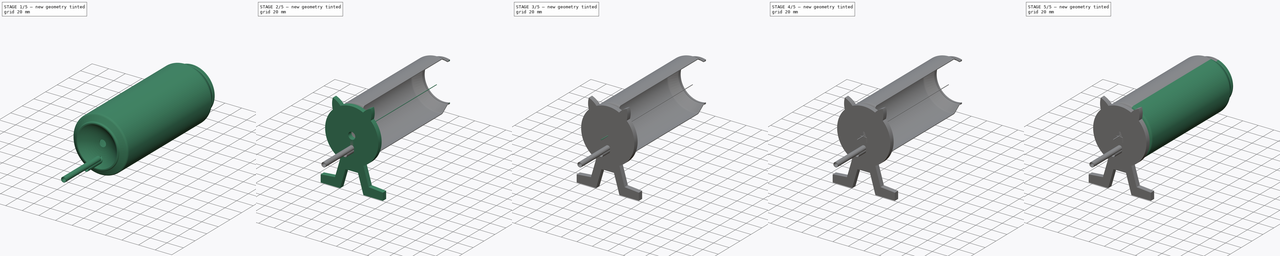
[diagram: build sequence overview — one tinted view per stage of 5, left to right]
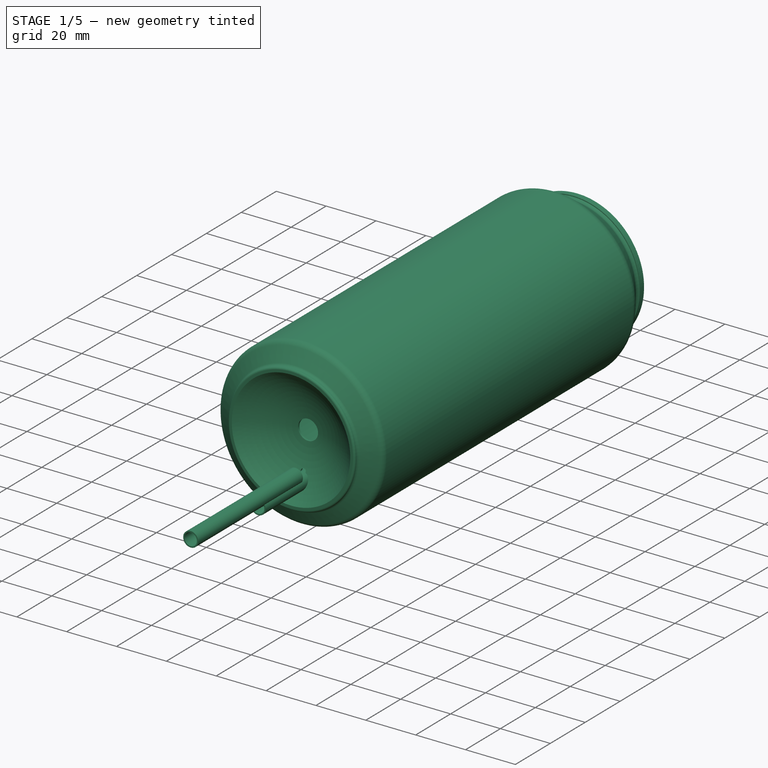
[diagram: stage 1 of 5 — iso view after this stage's code; geometry added in this stage tinted green]
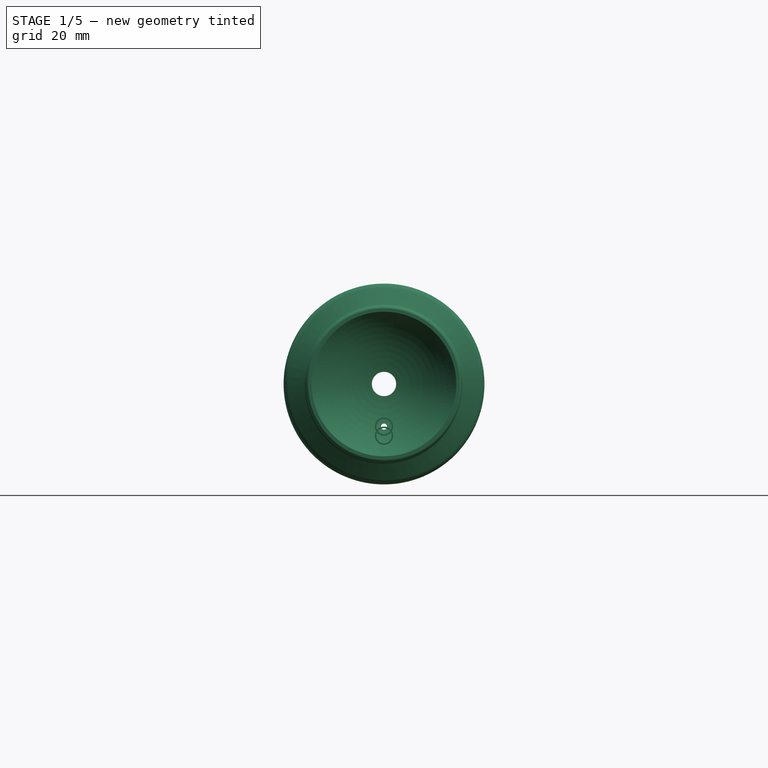
[diagram: stage 1 of 5 — front view after this stage's code; geometry added in this stage tinted green]
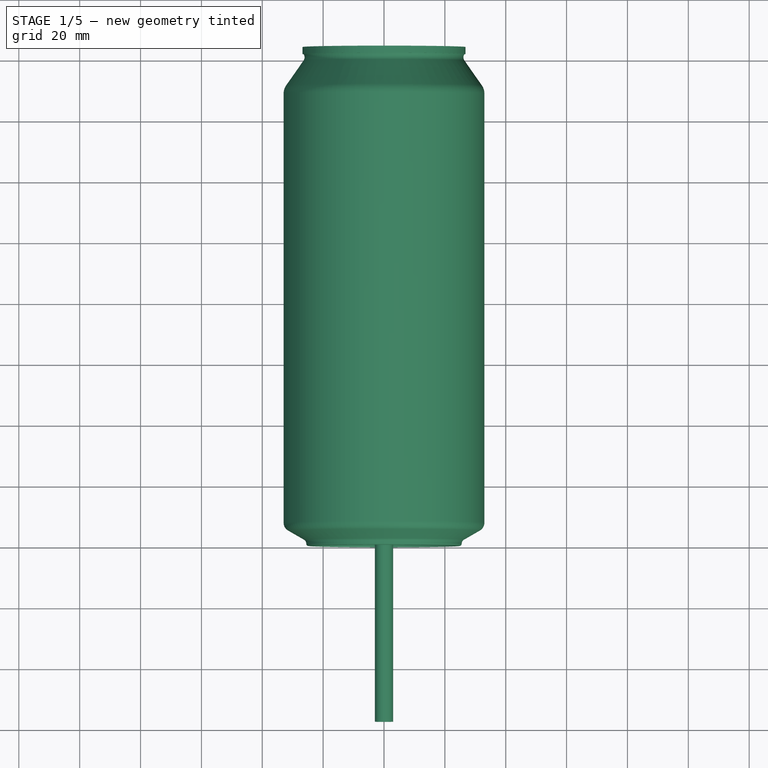
[diagram: stage 1 of 5 — top view after this stage's code; geometry added in this stage tinted green]
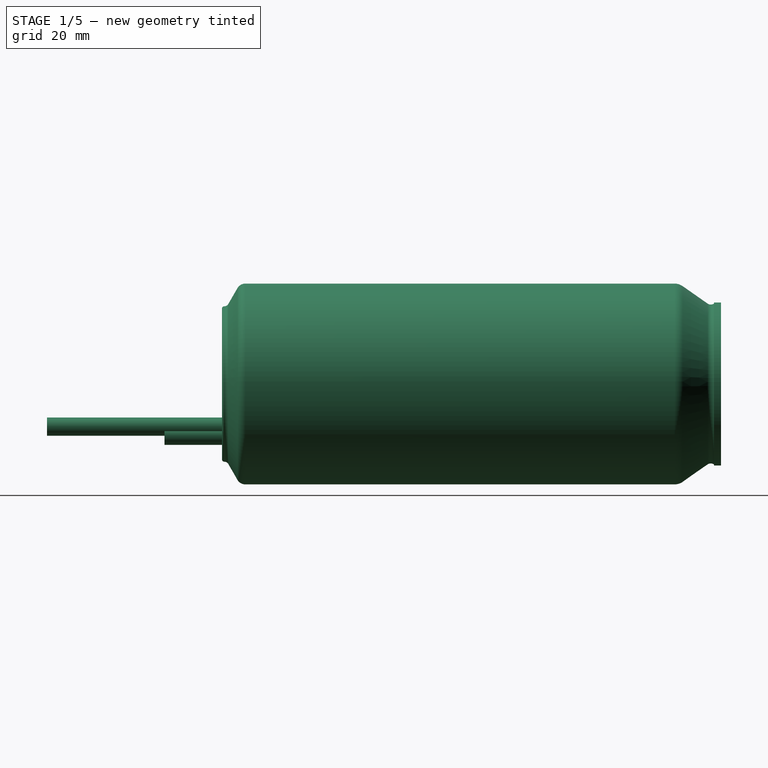
[diagram: stage 1 of 5 — right view after this stage's code; geometry added in this stage tinted green]
FCSTD DOCUMENT  (FreeCAD 1.0R39319 (Git))
Label: BeerCanDetector_v2
License: CERN Open Hardware Licence strongly-reciprocal
LicenseURL: https://cern-ohl.web.cern.ch/
objects: Sketcher::SketchObject×12, App::Part×10, PartDesign::Body×7, PartDesign::Pocket×4, Part::FeaturePython×4, PartDesign::Pad×4, PartDesign::Revolution×2, PartDesign::Groove×2, PartDesign::FeatureBase×1, Part::Feature×1, Part::Box×1
note: 75 computed .brp shape members not serialized (recipe doc carries the construction recipe); baked Part::Feature solids carry a one-line shape summary decoded from their .brp

FEATURE [App::Part] Part006  label="Wire"
  Group = -> [Box]
  Origin = -> Origin013
  Placement = pos=(0,-14.8,0) rot=(0,0,1;0rad)
FEATURE [Sketcher::SketchObject] Sketch009
  ArcFitTolerance = 1e-06
  AttachmentSupport = -> [YZ_Plane015]
  FullyConstrained = false
  MakeInternals = false
  MapMode = 5
  Placement = pos=(0,0,0) rot=(0.57735,0.57735,0.57735;2.0944rad)
  sketch-geometry (26):
    g0: LineSegment StartX=164 StartY=25.22 StartZ=0 EndX=164 EndY=26.78 EndZ=0
    g1: LineSegment StartX=161.7 StartY=26.78 StartZ=0 EndX=161.7 EndY=26.4458 EndZ=0
    g2: LineSegment StartX=159.55 StartY=26.4458 StartZ=0 EndX=151.421 EndY=32.138 EndZ=0
    g3: LineSegment StartX=148.687 StartY=33 StartZ=0 EndX=7.68678 EndY=33 EndZ=0
    g4: LineSegment StartX=5.0887 StartY=31.5 StartZ=0 EndX=2.07904 EndY=26.2871 EndZ=0
    g5: LineSegment StartX=-7e-16 StartY=24.7571 StartZ=0 EndX=-7e-16 EndY=23.7571 EndZ=0
    g6: ArcOfCircle CenterX=-23.22 CenterY=0 CenterZ=0 NormalX=0 NormalY=0 NormalZ=1 AngleXU=0 Radius=33.22 StartAngle=0 EndAngle=0.796831
    g7: ArcOfCircle CenterX=7.68678 CenterY=30 CenterZ=0 NormalX=0 NormalY=0 NormalZ=1 AngleXU=0 Radius=3 StartAngle=1.5708 EndAngle=2.61799
    g8: ArcOfCircle CenterX=0.78 CenterY=27.0371 CenterZ=0 NormalX=0 NormalY=0 NormalZ=1 AngleXU=0 Radius=1.5 StartAngle=4.71239 EndAngle=5.75959
    g9: ArcOfCircle CenterX=0.78 CenterY=24.7571 CenterZ=0 NormalX=0 NormalY=0 NormalZ=1 AngleXU=0 Radius=0.78 StartAngle=1.5708 EndAngle=3.14159
    g10: ArcOfCircle CenterX=148.687 CenterY=28.2338 CenterZ=0 NormalX=0 NormalY=0 NormalZ=1 AngleXU=0 Radius=4.76622 StartAngle=0.959931 EndAngle=1.5708
    g11: ArcOfCircle CenterX=160.625 CenterY=27.981 CenterZ=0 NormalX=0 NormalY=0 NormalZ=1 AngleXU=0 Radius=1.87421 StartAngle=4.10152 EndAngle=5.32325
    g12: ArcOfCircle CenterX=160.625 CenterY=27.981 CenterZ=0 NormalX=0 NormalY=0 NormalZ=1 AngleXU=0 Radius=2.65421 StartAngle=4.10152 EndAngle=5.12939
    g13: LineSegment StartX=159.103 StartY=25.8068 StartZ=0 EndX=150.973 EndY=31.4991 EndZ=0
    g14: ArcOfCircle CenterX=148.687 CenterY=28.2338 CenterZ=0 NormalX=0 NormalY=0 NormalZ=1 AngleXU=0 Radius=3.98622 StartAngle=0.959931 EndAngle=1.5708
    g15: LineSegment StartX=148.687 StartY=32.22 StartZ=0 EndX=7.68678 EndY=32.22 EndZ=0
    g16: ArcOfCircle CenterX=7.68678 CenterY=30 CenterZ=0 NormalX=0 NormalY=0 NormalZ=1 AngleXU=0 Radius=2.22 StartAngle=1.5708 EndAngle=2.61799
    g17: LineSegment StartX=5.7642 StartY=31.11 StartZ=0 EndX=2.75454 EndY=25.8971 EndZ=0
    g18: ArcOfCircle CenterX=0.78 CenterY=27.0371 CenterZ=0 NormalX=0 NormalY=0 NormalZ=1 AngleXU=0 Radius=2.28 StartAngle=4.71239 EndAngle=5.75959
    g19: LineSegment StartX=0.78 StartY=24.7571 StartZ=0 EndX=0.78 EndY=24.0832 EndZ=0
    g20: ArcOfCircle CenterX=-23.22 CenterY=0 CenterZ=0 NormalX=0 NormalY=0 NormalZ=1 AngleXU=0 Radius=34 StartAngle=0 EndAngle=0.787128
    g21: LineSegment StartX=10 StartY=0 StartZ=0 EndX=10.78 EndY=0 EndZ=0
    g22: LineSegment StartX=161.7 StartY=25.5542 StartZ=0 EndX=161.7 EndY=25.22 EndZ=0
    g23: LineSegment StartX=164 StartY=25.22 StartZ=0 EndX=161.7 EndY=25.22 EndZ=0
    g24: LineSegment StartX=161.7 StartY=26.78 StartZ=0 EndX=164 EndY=26.78 EndZ=0
    g25: GeomPoint [constr] X=164 Y=26 Z=0
  constraints (70):
    c: Vertical(g0)
    c: PointOnObject(g6,g-1)
    c: Coincident(g6,g5)
    c: PointOnObject(g6,g-1)
    c: DistanceX(g-1,g6) = 10
    c: Tangent(g3,g7) = -1.5708
    c: Tangent(g4,g8) = 1.5708
    c: Tangent(g5,g9) = -1.5708
    c: Tangent(g3,g10) = -1.5708
    c: Coincident(g11,g1)
    c: DistanceY(g5,g5) = 1
    c: Tangent(g12,g13) = 1.5708
    c: Tangent(g13,g14) = -1.5708
    c: Tangent(g14,g15) = -1.5708
    c: Tangent(g15,g16) = -1.5708
    c: Tangent(g16,g17) = -1.5708
    c: Tangent(g17,g18) = 1.5708
    c: Coincident(g18,g19)
    c: Coincident(g19,g20)
    c: Coincident(g12,g11)
    c: Parallel(g13,g2)
    c: Coincident(g14,g10)
    c: Parallel(g15,g3)
    c: Coincident(g16,g7)
    c: Parallel(g17,g4)
    c: Coincident(g18,g8)
    c: Parallel(g19,g5)
    c: Coincident(g20,g6)
    c: Coincident(g21,g6)
    c: Coincident(g21,g20)
    c: Horizontal(g21)
    c: Vertical(g22)
    c: Coincident(g23,g22)
    c: Horizontal(g23)
    c: Distance(g12,g2) = 0.78
    c: Distance(g4,g17) = 0.78
    c: Coincident(g2,g11)
    c: Coincident(g7,g4)
    c: Horizontal(g3)
    c: Diameter(g11) = 3.74841
    c: Diameter(g8) = 3
    c: Diameter(g9) = 1.56
    c: Tangent(g10,g2) = -1.5708
    c: Vertical(g1)
    c: DistanceX(g1,g0) = 2.3
    c: Coincident(g24,g1)
    c: Coincident(g24,g0)
    c: Horizontal(g24)
    c: DistanceX(g2,g1) = 2.15
    c: Vertical(g5)
    c: PointOnObject(g5,g-2)
    c: Coincident(g18,g9)
    c: DistanceY(g20,g3) = 33
    c: Diameter(g20) = 68
    c: DistanceX(g21,g21) = 0.78
    c: Angle(g17,g15) = 2.0944
    c: Tangent(g8,g9) = 1.5708
    c: Vertical(g8,g9)
    c: DistanceX(g3,g3) = 141
    c: Horizontal(g2,g1)
    c: Coincident(g12,g22)
    c: Equal(g22,g1)
    c: Vertical(g12,g1)
    c: Coincident(g0,g23)
    c: DistanceY(g0,g0) = 1.56
    c: Symmetric(g0,g0,g25)
    c: DistanceY(g-1,g25) = 26
    c: DistanceX(g-1,g25) = 164
    c: Diameter(g7) = 6
    c: Angle(g3,g2) = 2.53073
FEATURE [PartDesign::Revolution] Revolution001
  Angle = 360
  Angle2 = 60
  Axis = (0,1,0)
  Base = (0,0,0)
  Placement = pos=(0,0,0) rot=(1,1,1;2.0944rad)
  Profile = -> Sketch009
  ReferenceAxis = -> Sketch009 [H_Axis]
  Refine = true
  Suppressed = false
  Type = 0
FEATURE [Sketcher::SketchObject] Sketch010
  ArcFitTolerance = 1e-06
  AttachmentSupport = -> [Revolution001]
  FullyConstrained = true
  MakeInternals = false
  MapMode = 5
  Placement = pos=(0,-6.2e-15,0) rot=(0.57735,0.57735,-0.57735;2.0944rad)
  sketch-geometry (2):
    g0: Circle CenterX=0 CenterY=0 CenterZ=0 NormalX=0 NormalY=0 NormalZ=1 AngleXU=0 Radius=4
    g1: Circle CenterX=14 CenterY=0 CenterZ=0 NormalX=0 NormalY=0 NormalZ=1 AngleXU=0 Radius=1
  constraints (5):
    c: Diameter(g0) = 8
    c: Coincident(g0,g-1)
    c: Diameter(g1) = 2
    c: PointOnObject(g1,g-1)
    c: DistanceX(g0,g1) = 14
FEATURE [PartDesign::Pocket] Pocket002
  BaseFeature = -> Revolution001
  Direction = (0,1,0)
  Length = 11
  Length2 = 5
  Placement = pos=(0,0,0) rot=(1,1,1;2.0944rad)
  Profile = -> Sketch010
  ReferenceAxis = -> Sketch010 [N_Axis]
  Refine = true
  Suppressed = false
  Type = 0
FEATURE [PartDesign::Body] Body006
  AllowCompound = false
  Group = -> [Sketch009,Revolution001,Sketch010,Pocket002,Sketch011,Pocket003]
  Origin = -> Origin015
  Tip = -> Pocket003
FEATURE [App::Part] Part007  label="CutCan"
  Group = -> [Body006]
  Origin = -> Origin014
FEATURE [Part::FeaturePython] Tube  # WARN: FeaturePython — macro-defined, semantics opaque (R4)
  AttacherType = Attacher::AttachEngine3D
  Height = 60
  InnerRadius = 2.5
  OuterRadius = 3
  Placement = pos=(0,-18.9,-17) rot=(1,0,0;4.71239rad)
FEATURE [App::Part] Part004  label="FrontPC"
  Group = -> [Body004,PAR_00103470,Tube]
  Origin = -> Origin009
  Placement = pos=(0,167.925,0) rot=(1,0,0;0rad)
FEATURE [Part::FeaturePython] Tube001  # WARN: FeaturePython — macro-defined, semantics opaque (R4)
  AttacherType = Attacher::AttachEngine3D
  Height = 60
  InnerRadius = 2.5
  OuterRadius = 3
  Placement = pos=(0,-57.5,-14) rot=(1,0,0;4.71239rad)
FEATURE [App::Part] Part005  label="RearPC"
  Group = -> [Body005,Tube001]
  Origin = -> Origin011
  Placement = pos=(0,1.6,0) rot=(0,0,1;0rad)
FEATURE [App::Part] Part008  label="Detector"
  Group = -> [Part005,Part004,Part006,Part001,Part002,Part007,Part]
  Origin = -> Origin016
  Placement = pos=(0,-75.1,0) rot=(0,0,1;0rad)
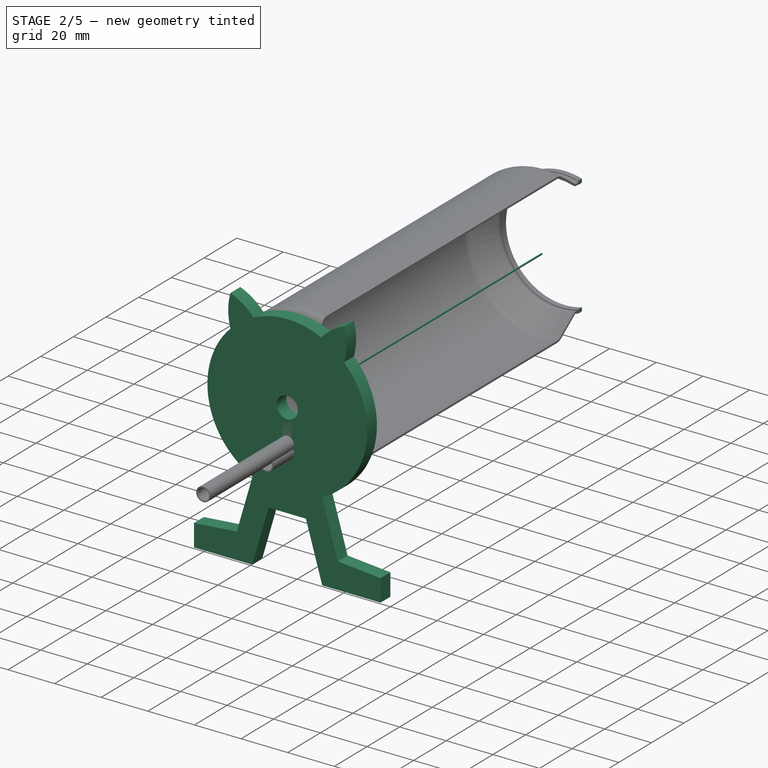
[diagram: stage 2 of 5 — iso view after this stage's code; geometry added in this stage tinted green]
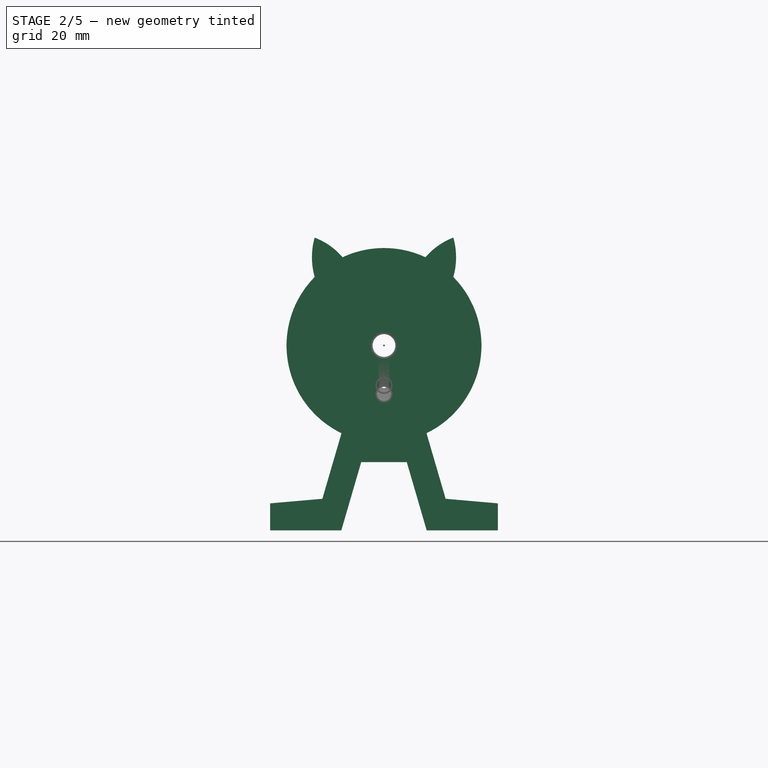
[diagram: stage 2 of 5 — front view after this stage's code; geometry added in this stage tinted green]
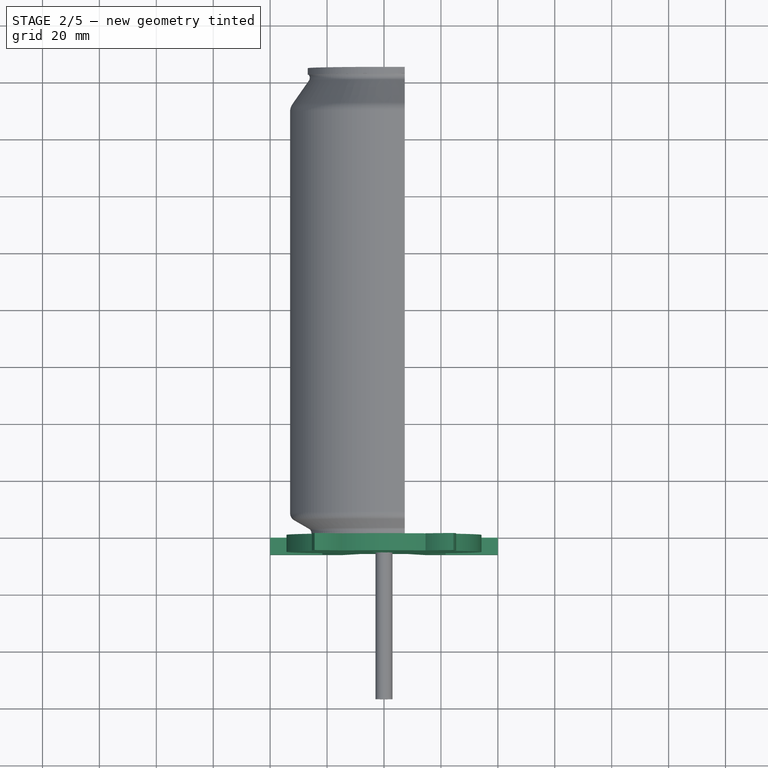
[diagram: stage 2 of 5 — top view after this stage's code; geometry added in this stage tinted green]
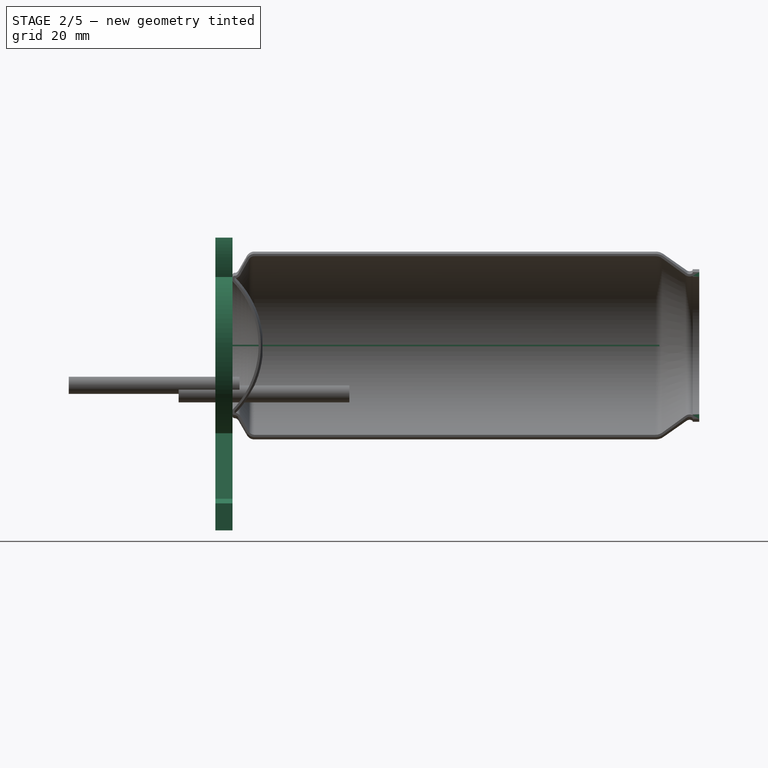
[diagram: stage 2 of 5 — right view after this stage's code; geometry added in this stage tinted green]
FEATURE [PartDesign::Body] Body003
  AllowCompound = false
  Group = -> [Sketch004,Pad001]
  Origin = -> Origin007
  Tip = -> Pad001
FEATURE [App::Part] Part003  label="NeedleLong"
  Group = -> [Body003]
  Origin = -> Origin006
  Placement = pos=(26.4,-5.9e-15,0) rot=(0,0,1;4.71239rad)
FEATURE [Part::Feature] Part__Feature  label="PAR-00103470"
  shape: bbox 45.25 x 15.01 x 15.01 mm, 166 faces (baked)
FEATURE [App::Part] PAR_00103470  label="SHV"
  Group = -> [Part__Feature,Part003]
  Origin = -> Origin008
  Placement = pos=(9.3e-15,-9.6,0) rot=(0,0,1;4.71239rad)
FEATURE [Sketcher::SketchObject] Sketch005
  ArcFitTolerance = 1e-06
  AttachmentSupport = -> [XZ_Plane010]
  FullyConstrained = true
  MakeInternals = false
  MapMode = 5
  Placement = pos=(0,0,0) rot=(1,0,0;1.5708rad)
  sketch-geometry (22):
    g0: ArcOfCircle CenterX=0 CenterY=0 CenterZ=0 NormalX=0 NormalY=0 NormalZ=1 AngleXU=0 Radius=34.25 StartAngle=2.36214 EndAngle=4.26111
    g1: Circle CenterX=0 CenterY=0 CenterZ=0 NormalX=0 NormalY=0 NormalZ=1 AngleXU=0 Radius=4.55
    g2: Circle CenterX=0 CenterY=-17 CenterZ=0 NormalX=0 NormalY=0 NormalZ=1 AngleXU=0 Radius=3
    g3: ArcOfCircle CenterX=0 CenterY=31 CenterZ=0 NormalX=0 NormalY=0 NormalZ=1 AngleXU=0 Radius=25.3273 StartAngle=2.86527 EndAngle=3.41858
    g4: ArcOfCircle CenterX=-32.7966 CenterY=15.5385 CenterZ=0 NormalX=0 NormalY=0 NormalZ=1 AngleXU=0 Radius=23.907 StartAngle=0.703296 EndAngle=1.21043
    g5: LineSegment [constr] StartX=-24.3619 StartY=24.074 StartZ=0 EndX=-32.7966 EndY=15.5385 EndZ=0
    g6: ArcOfCircle CenterX=1e-15 CenterY=31 CenterZ=0 NormalX=0 NormalY=0 NormalZ=1 AngleXU=0 Radius=25.3273 StartAngle=6.0062 EndAngle=6.55951
    g7: ArcOfCircle CenterX=32.7966 CenterY=15.5385 CenterZ=0 NormalX=0 NormalY=0 NormalZ=1 AngleXU=0 Radius=23.907 StartAngle=1.93117 EndAngle=2.4383
    g8: ArcOfCircle CenterX=0 CenterY=0 CenterZ=0 NormalX=0 NormalY=0 NormalZ=1 AngleXU=0 Radius=34.25 StartAngle=1.13164 EndAngle=2.00996
    g9: LineSegment StartX=-14.9369 StartY=-30.8213 StartZ=0 EndX=-21.6569 EndY=-53.8613 EndZ=0
    g10: LineSegment StartX=-21.6569 StartY=-53.8613 StartZ=0 EndX=-40 EndY=-55.4661 EndZ=0
    g11: LineSegment StartX=-40 StartY=-55.4661 StartZ=0 EndX=-40 EndY=-64.9661 EndZ=0
    g12: LineSegment StartX=-40 StartY=-64.9661 StartZ=0 EndX=-15 EndY=-64.9661 EndZ=0
    g13: LineSegment StartX=-15 StartY=-64.9661 StartZ=0 EndX=-8 EndY=-40.9661 EndZ=0
    g14: LineSegment StartX=-8 StartY=-40.9661 StartZ=0 EndX=0 EndY=-40.9661 EndZ=0
    g15: LineSegment StartX=21.6569 StartY=-53.8613 StartZ=0 EndX=40 EndY=-55.4661 EndZ=0
    g16: LineSegment StartX=14.9369 StartY=-30.8213 StartZ=0 EndX=21.6569 EndY=-53.8613 EndZ=0
    g17: LineSegment StartX=40 StartY=-55.4661 StartZ=0 EndX=40 EndY=-64.9661 EndZ=0
    g18: LineSegment StartX=40 StartY=-64.9661 StartZ=0 EndX=15 EndY=-64.9661 EndZ=0
    g19: LineSegment StartX=15 StartY=-64.9661 StartZ=0 EndX=8 EndY=-40.9661 EndZ=0
    g20: LineSegment StartX=8 StartY=-40.9661 StartZ=0 EndX=0 EndY=-40.9661 EndZ=0
    g21: ArcOfCircle CenterX=0 CenterY=0 CenterZ=0 NormalX=0 NormalY=0 NormalZ=1 AngleXU=0 Radius=34.25 StartAngle=5.16367 EndAngle=7.06264
  constraints (62):
    c: Diameter(g0) = 68.5
    c: Coincident(g0,g-1)
    c: Diameter(g1) = 9.1
    c: Coincident(g1,g0)
    c: Diameter(g2) = 6
    c: PointOnObject(g2,g-2)
    c: DistanceY(g2,g0) = 17
    c: PointOnObject(g3,g-2)
    c: Coincident(g4,g3)
    c: Coincident(g5,g3)
    c: Coincident(g5,g4)
    c: Tangent(g5,g0)
    c: Distance(g4,g3) = 12
    c: Distance(g5) = 12
    c: Horizontal(g3,g4)
    c: DistanceY(g0,g3) = 31
    c: Coincident(g8,g4)
    c: Coincident(g0,g3)
    c: Equal(g3,g6)
    c: Symmetric(g3,g6,g-2)
    c: Symmetric(g3,g6,g-2)
    c: Equal(g4,g7)
    c: Symmetric(g4,g7,g-2)
    c: Symmetric(g4,g7,g-2)
    c: Equal(g0,g8)
    c: PointOnObject(g21,g6)
    c: PointOnObject(g8,g7)
    c: Coincident(g0,g8)
    c: Coincident(g9,g10)
    c: Coincident(g10,g11)
    c: Vertical(g11)
    c: Coincident(g11,g12)
    c: Horizontal(g12)
    c: Coincident(g12,g13)
    c: Coincident(g13,g14)
    c: PointOnObject(g14,g-2)
    c: Horizontal(g14)
    c: Parallel(g13,g9)
    c: Angle(g11,g10) = 1.65806
    c: Distance(g13) = 25
    c: Distance(g9) = 24
    c: DistanceX(g11,g0) = 40
    c: DistanceX(g12,g12) = 25
    c: DistanceX(g14,g14) = 8
    c: DistanceY(g11,g11) = 9.5
    c: Distance(g9,g13) = 9.5
    c: Symmetric(g9,g16,g-2)
    c: Symmetric(g9,g16,g-2)
    c: Symmetric(g10,g15,g-2)
    c: Symmetric(g10,g15,g-2)
    c: Symmetric(g11,g17,g-2)
    c: Symmetric(g11,g17,g-2)
    c: Symmetric(g12,g18,g-2)
    c: Symmetric(g12,g18,g-2)
    c: Symmetric(g13,g19,g-2)
    c: Symmetric(g13,g19,g-2)
    c: Symmetric(g14,g20,g-2)
    c: Equal(g0,g21)
    c: Coincident(g0,g9)
    c: PointOnObject(g21,g16)
    c: Coincident(g0,g21)
    c: Coincident(g20,g14)
FEATURE [PartDesign::Pad] Pad002
  Direction = (0,-1,2e-16)
  Length = 6
  Length2 = 10
  Placement = pos=(0,0,0) rot=(1,0,0;1.5708rad)
  Profile = -> Sketch005
  ReferenceAxis = -> Sketch005 [N_Axis]
  Refine = true
  Suppressed = false
  Type = 0
FEATURE [PartDesign::Body] Body004  label="frontplastic"
  AllowCompound = false
  Group = -> [Sketch005,Pad002,Sketch008,Groove001]
  Origin = -> Origin010
  Tip = -> Groove001
FEATURE [Part::Box] Box  label="wire"
  AttacherType = Attacher::AttachEngine3D
  Height = 0.5
  Length = 0.5
  Placement = pos=(-0.25,0,-0.25) rot=(0,0,1;0rad)
  Width = 150
  expr: .Placement.Base.x = Length / -2
  expr: .Placement.Base.z = Length / -2
FEATURE [Sketcher::SketchObject] Sketch011
  ArcFitTolerance = 1e-06
  AttachmentSupport = -> [XY_Plane015]
  FullyConstrained = false
  MakeInternals = false
  MapMode = 5
  sketch-geometry (4):
    g0: LineSegment StartX=39.2669 StartY=169.319 StartZ=0 EndX=7.30201 EndY=169.319 EndZ=0
    g1: LineSegment StartX=7.30201 StartY=169.319 StartZ=0 EndX=7.30201 EndY=-20.7194 EndZ=0
    g2: LineSegment StartX=7.30201 StartY=-20.7194 StartZ=0 EndX=39.2669 EndY=-20.7194 EndZ=0
    g3: LineSegment StartX=39.2669 StartY=-20.7194 StartZ=0 EndX=39.2669 EndY=169.319 EndZ=0
  constraints (8):
    c: Coincident(g0,g1)
    c: Coincident(g1,g2)
    c: Coincident(g2,g3)
    c: Coincident(g3,g0)
    c: Horizontal(g0)
    c: Horizontal(g2)
    c: Vertical(g1)
    c: Vertical(g3)
FEATURE [PartDesign::Pocket] Pocket003
  BaseFeature = -> Pocket002
  Direction = (0,0,-1)
  Length = 66
  Length2 = 5
  Midplane = true
  Placement = pos=(0,0,0) rot=(1,1,1;2.0944rad)
  Profile = -> Sketch011
  ReferenceAxis = -> Sketch011 [N_Axis]
  Refine = true
  Suppressed = false
  Type = 0
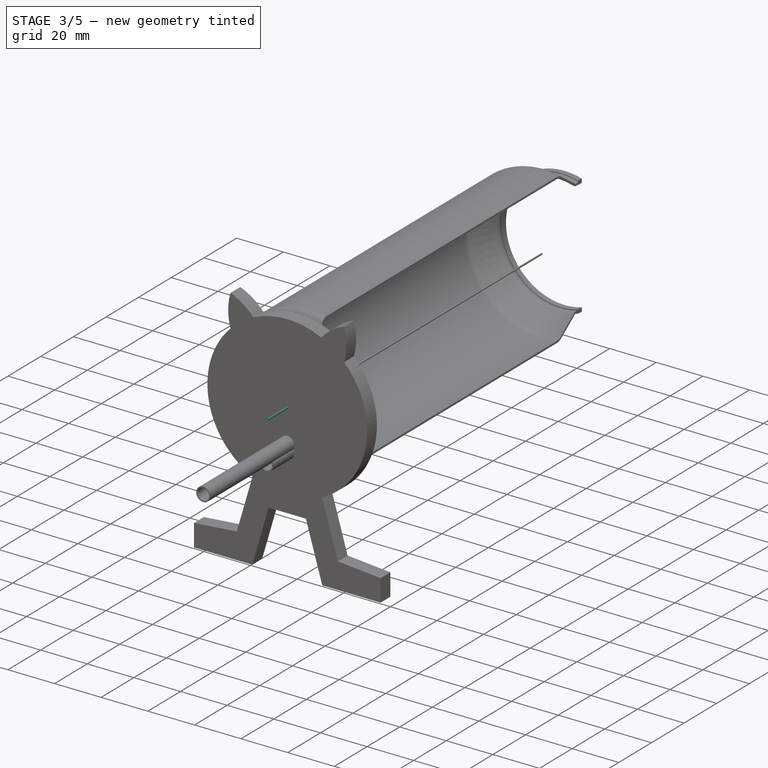
[diagram: stage 3 of 5 — iso view after this stage's code; geometry added in this stage tinted green]
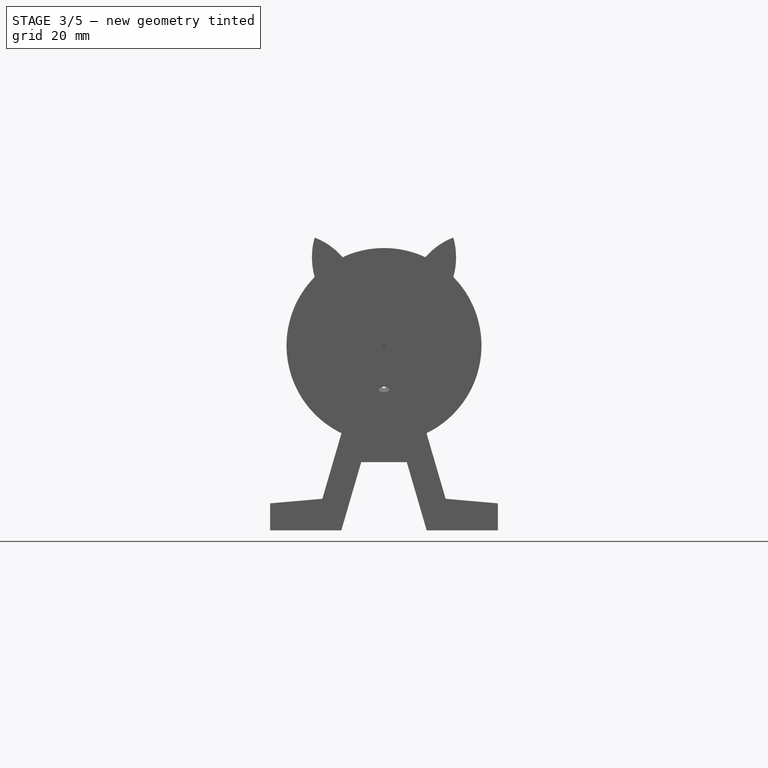
[diagram: stage 3 of 5 — front view after this stage's code; geometry added in this stage tinted green]
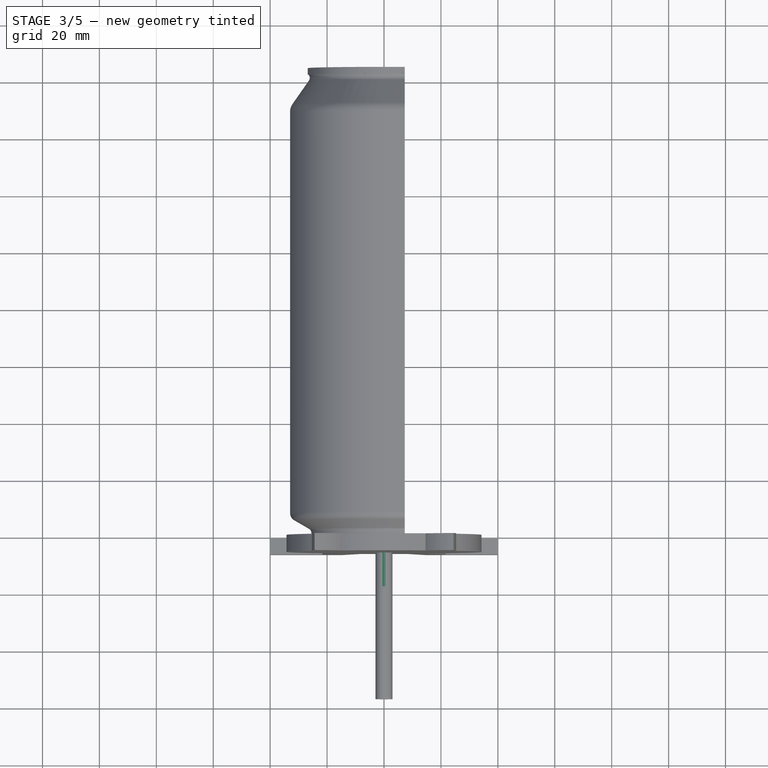
[diagram: stage 3 of 5 — top view after this stage's code; geometry added in this stage tinted green]
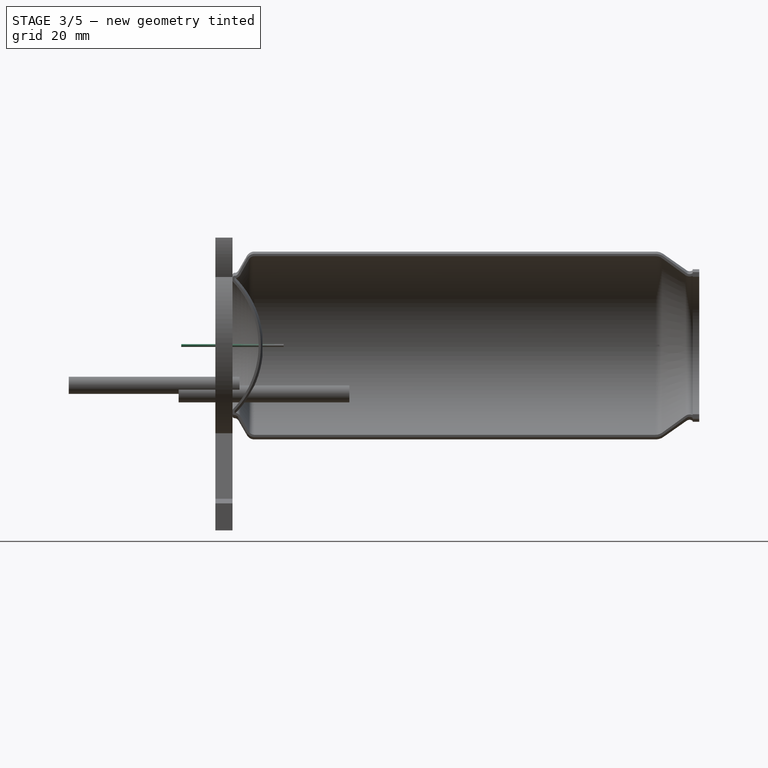
[diagram: stage 3 of 5 — right view after this stage's code; geometry added in this stage tinted green]
FEATURE [PartDesign::Body] Body002  label="sneedle"
  AllowCompound = false
  Group = -> [Sketch003,Pad]
  Origin = -> Origin005
  Tip = -> Pad
FEATURE [App::Part] Part002  label="NeedleShort"
  Group = -> [Body002]
  Origin = -> Origin004
  Placement = pos=(0,14.9,0) rot=(0,0,1;0rad)
FEATURE [Sketcher::SketchObject] Sketch004
  ArcFitTolerance = 1e-06
  AttachmentSupport = -> [XZ_Plane007]
  FullyConstrained = true
  MakeInternals = false
  MapMode = 5
  Placement = pos=(0,0,0) rot=(1,0,0;1.5708rad)
  sketch-geometry (2):
    g0: Circle CenterX=0 CenterY=0 CenterZ=0 NormalX=0 NormalY=0 NormalZ=1 AngleXU=0 Radius=0.5
    g1: Circle CenterX=0 CenterY=0 CenterZ=0 NormalX=0 NormalY=0 NormalZ=1 AngleXU=0 Radius=0.3
  constraints (4):
    c: Diameter(g0) = 1
    c: Coincident(g0,g-1)
    c: Diameter(g1) = 0.6
    c: Coincident(g1,g0)
FEATURE [PartDesign::Pad] Pad001
  Direction = (0,-1,2e-16)
  Length = 36
  Length2 = 10
  Midplane = true
  Placement = pos=(0,0,0) rot=(1,0,0;1.5708rad)
  Profile = -> Sketch004
  ReferenceAxis = -> Sketch004 [N_Axis]
  Refine = true
  Suppressed = false
  Type = 0
FEATURE [Sketcher::SketchObject] Sketch006
  ArcFitTolerance = 1e-06
  AttachmentSupport = -> [XZ_Plane012]
  FullyConstrained = true
  MakeInternals = false
  MapMode = 5
  Placement = pos=(0,0,0) rot=(1,0,0;1.5708rad)
  sketch-geometry (15):
    g0: ArcOfCircle CenterX=0 CenterY=0 CenterZ=0 NormalX=0 NormalY=0 NormalZ=1 AngleXU=0 Radius=34.25 StartAngle=1.5708 EndAngle=4.26111
    g1: Circle CenterX=0 CenterY=-14 CenterZ=0 NormalX=0 NormalY=0 NormalZ=1 AngleXU=0 Radius=3
    g2: LineSegment StartX=-14.9369 StartY=-30.8213 StartZ=0 EndX=-21.6569 EndY=-53.8613 EndZ=0
    g3: LineSegment StartX=-21.6569 StartY=-53.8613 StartZ=0 EndX=-40 EndY=-55.4661 EndZ=0
    g4: LineSegment StartX=-40 StartY=-55.4661 StartZ=0 EndX=-40 EndY=-64.9661 EndZ=0
    g5: LineSegment StartX=-40 StartY=-64.9661 StartZ=0 EndX=-15 EndY=-64.9661 EndZ=0
    g6: LineSegment StartX=-15 StartY=-64.9661 StartZ=0 EndX=-8 EndY=-40.9661 EndZ=0
    g7: LineSegment StartX=-8 StartY=-40.9661 StartZ=0 EndX=0 EndY=-40.9661 EndZ=0
    g8: LineSegment StartX=21.6569 StartY=-53.8613 StartZ=0 EndX=40 EndY=-55.4661 EndZ=0
    g9: LineSegment StartX=14.9369 StartY=-30.8213 StartZ=0 EndX=21.6569 EndY=-53.8613 EndZ=0
    g10: LineSegment StartX=40 StartY=-55.4661 StartZ=0 EndX=40 EndY=-64.9661 EndZ=0
    g11: LineSegment StartX=40 StartY=-64.9661 StartZ=0 EndX=15 EndY=-64.9661 EndZ=0
    g12: LineSegment StartX=15 StartY=-64.9661 StartZ=0 EndX=8 EndY=-40.9661 EndZ=0
    g13: LineSegment StartX=8 StartY=-40.9661 StartZ=0 EndX=0 EndY=-40.9661 EndZ=0
    g14: ArcOfCircle CenterX=0 CenterY=0 CenterZ=0 NormalX=0 NormalY=0 NormalZ=1 AngleXU=0 Radius=34.25 StartAngle=5.16367 EndAngle=7.85398
  constraints (40):
    c: Diameter(g0) = 68.5
    c: Coincident(g0,g-1)
    c: Diameter(g1) = 6
    c: PointOnObject(g1,g-2)
    c: DistanceY(g1,g0) = 14
    c: Coincident(g2,g3)
    c: Coincident(g3,g4)
    c: Vertical(g4)
    c: Coincident(g4,g5)
    c: Horizontal(g5)
    c: Coincident(g5,g6)
    c: Coincident(g6,g7)
    c: PointOnObject(g7,g-2)
    c: Horizontal(g7)
    c: Parallel(g6,g2)
    c: Angle(g4,g3) = 1.65806
    c: Distance(g6) = 25
    c: Distance(g2) = 24
    c: DistanceX(g4,g0) = 40
    c: DistanceX(g5,g5) = 25
    c: DistanceX(g7,g7) = 8
    c: DistanceY(g4,g4) = 9.5
    c: Distance(g2,g6) = 9.5
    c: Symmetric(g2,g9,g-2)
    c: Symmetric(g2,g9,g-2)
    c: Symmetric(g3,g8,g-2)
    c: Symmetric(g3,g8,g-2)
    c: Symmetric(g4,g10,g-2)
    c: Symmetric(g4,g10,g-2)
    c: Symmetric(g5,g11,g-2)
    c: Symmetric(g5,g11,g-2)
    c: Symmetric(g6,g12,g-2)
    c: Symmetric(g6,g12,g-2)
    c: Symmetric(g7,g13,g-2)
    c: Coincident(g0,g2)
    c: PointOnObject(g14,g9)
    c: Coincident(g0,g14)
    c: Coincident(g13,g7)
    c: Coincident(g0,g14)
    c: PointOnObject(g0,g-2)
FEATURE [PartDesign::Pad] Pad003
  Direction = (0,-1,2e-16)
  Length = 6
  Length2 = 10
  Placement = pos=(0,0,0) rot=(1,0,0;1.5708rad)
  Profile = -> Sketch006
  ReferenceAxis = -> Sketch006 [N_Axis]
  Refine = true
  Suppressed = false
  Type = 0
FEATURE [Sketcher::SketchObject] Sketch007
  ArcFitTolerance = 1e-06
  AttachmentSupport = -> [XY_Plane012]
  FullyConstrained = true
  MakeInternals = false
  MapMode = 5
  sketch-geometry (6):
    g0: LineSegment StartX=-26 StartY=0 StartZ=0 EndX=-24.5 EndY=-2.59808 EndZ=0
    g1: LineSegment StartX=-24.5 StartY=-2.59808 StartZ=0 EndX=-23 EndY=0 EndZ=0
    g2: LineSegment StartX=-23 StartY=0 StartZ=0 EndX=-26 EndY=0 EndZ=0
    g3: LineSegment StartX=0 StartY=0 StartZ=0 EndX=-1.5 EndY=0 EndZ=0
    g4: LineSegment StartX=-1.5 StartY=0 StartZ=0 EndX=0 EndY=-2.59808 EndZ=0
    g5: LineSegment StartX=0 StartY=-2.59808 StartZ=0 EndX=0 EndY=0 EndZ=0
  constraints (17):
    c: PointOnObject(g0,g-1)
    c: Coincident(g0,g1)
    c: PointOnObject(g1,g-1)
    c: Coincident(g1,g2)
    c: Coincident(g2,g0)
    c: DistanceX(g2,g2) = 3
    c: Equal(g0,g1)
    c: Equal(g0,g2)
    c: DistanceX(g0,g-1) = 24.5
    c: Coincident(g-1,g3)
    c: PointOnObject(g3,g-1)
    c: Coincident(g3,g4)
    c: PointOnObject(g4,g-2)
    c: Coincident(g4,g5)
    c: Coincident(g5,g3)
    c: DistanceX(g3,g3) = 1.5
    c: Distance(g4) = 3
FEATURE [PartDesign::Groove] Groove
  Angle = 360
  Angle2 = 60
  Axis = (0,1,0)
  Base = (0,0,0)
  BaseFeature = -> Pad003
  Placement = pos=(0,0,0) rot=(1,0,0;1.5708rad)
  Profile = -> Sketch007
  ReferenceAxis = -> Sketch007 [V_Axis]
  Refine = true
  Reversed = true
  Suppressed = false
  Type = 0
FEATURE [PartDesign::Body] Body005  label="rearplastic"
  AllowCompound = false
  Group = -> [Sketch006,Pad003,Sketch007,Groove]
  Origin = -> Origin012
  Tip = -> Groove
FEATURE [Sketcher::SketchObject] Sketch008
  ArcFitTolerance = 1e-06
  AttachmentSupport = -> [XY_Plane010]
  ExternalGeometry = -> [Pad002]
  FullyConstrained = true
  MakeInternals = false
  MapMode = 5
  sketch-geometry (5):
    g0: LineSegment StartX=-27 StartY=-6 StartZ=0 EndX=-27 EndY=-4.5 EndZ=0
    g1: LineSegment StartX=-27 StartY=-4.5 StartZ=0 EndX=-25 EndY=-4.5 EndZ=0
    g2: LineSegment StartX=-25 StartY=-4.5 StartZ=0 EndX=-25 EndY=-6 EndZ=0
    g3: LineSegment StartX=-25 StartY=-6 StartZ=0 EndX=-27 EndY=-6 EndZ=0
    g4: GeomPoint [constr] X=-26 Y=-4.5 Z=0
  constraints (13):
    c: Vertical(g0)
    c: Coincident(g0,g1)
    c: Horizontal(g1)
    c: Coincident(g1,g2)
    c: Vertical(g2)
    c: Coincident(g2,g3)
    c: Coincident(g3,g0)
    c: Horizontal(g3)
    c: PointOnObject(g2,g-3)
    c: DistanceY(g2,g2) = 1.5
    c: DistanceX(g1,g1) = 2
    c: Symmetric(g1,g1,g4)
    c: DistanceX(g4,g-1) = 26
FEATURE [PartDesign::Groove] Groove001
  Angle = 360
  Angle2 = 60
  Axis = (0,1,0)
  Base = (0,0,0)
  BaseFeature = -> Pad002
  Placement = pos=(0,0,0) rot=(1,0,0;1.5708rad)
  Profile = -> Sketch008
  ReferenceAxis = -> Sketch008 [V_Axis]
  Refine = true
  Reversed = true
  Suppressed = false
  Type = 0
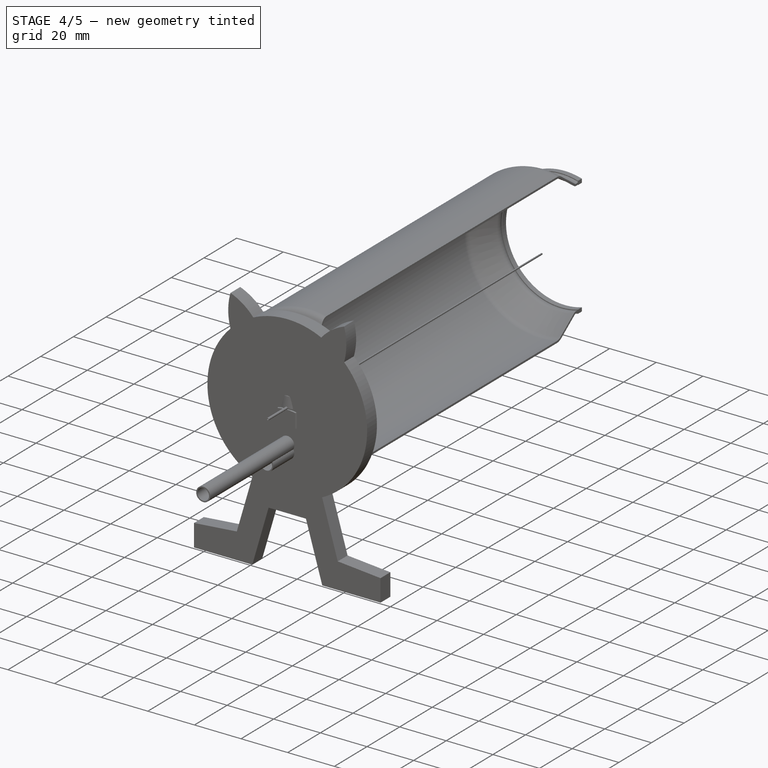
[diagram: stage 4 of 5 — iso view after this stage's code; geometry added in this stage tinted green]
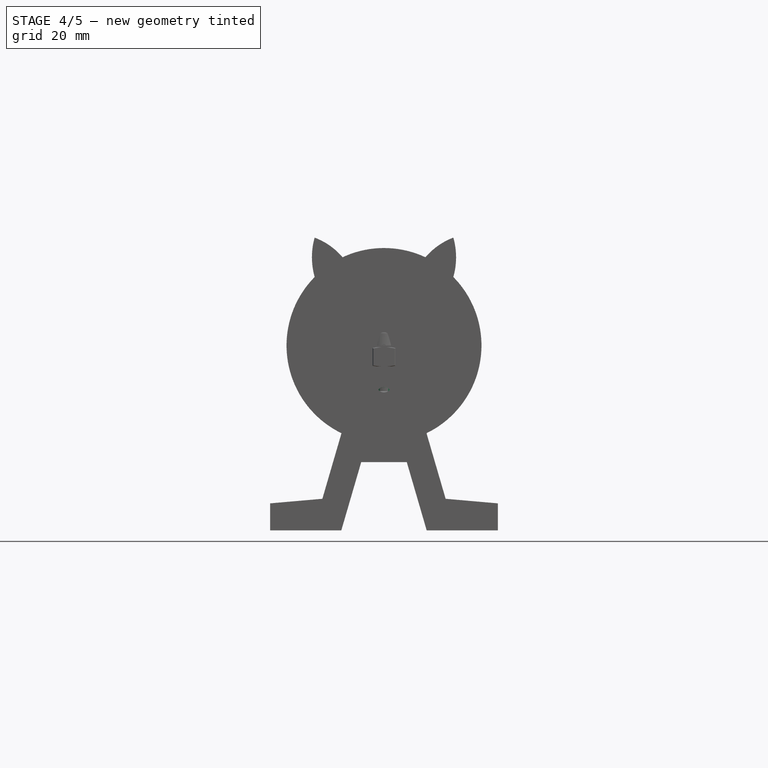
[diagram: stage 4 of 5 — front view after this stage's code; geometry added in this stage tinted green]
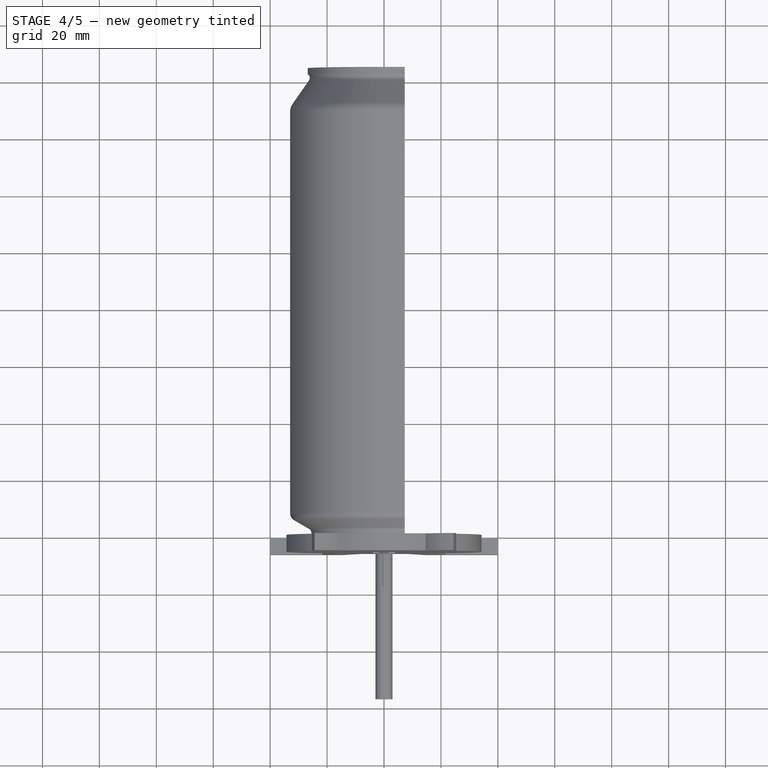
[diagram: stage 4 of 5 — top view after this stage's code; geometry added in this stage tinted green]
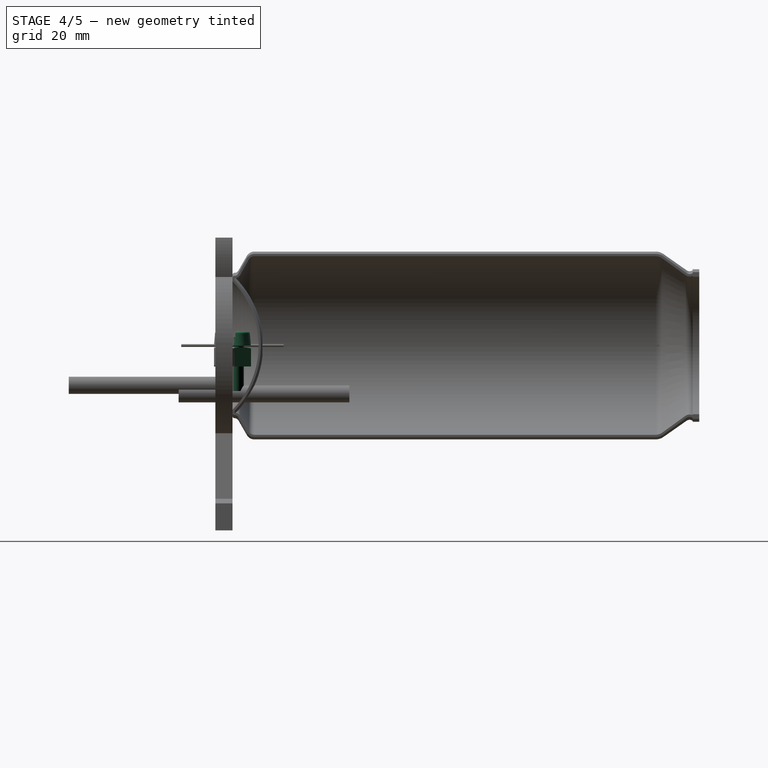
[diagram: stage 4 of 5 — right view after this stage's code; geometry added in this stage tinted green]
FEATURE [PartDesign::Body] Body
  AllowCompound = false
  Group = -> [Sketch,Revolution,Sketch001,Pocket]
  Origin = -> Origin001
  Tip = -> Pocket
FEATURE [App::Part] Part  label="Can"
  Group = -> [Body]
  Origin = -> Origin
FEATURE [Part::FeaturePython] Screw  label="M8x16-Screw"  # WARN: FeaturePython — macro-defined, semantics opaque (R4)
  Diameter = 13
  Invert = false
  LeftHanded = false
  Length = 3
  LengthCustom = 16
  MatchOuter = false
  OffsetAngle = 0
  Thread = false
  Type = 39
FEATURE [PartDesign::Body] Body001  label="screw"
  AllowCompound = false
  BaseFeature = -> Screw
  Group = -> [BaseFeature,Sketch002,Pocket001]
  Origin = -> Origin002
  Tip = -> Pocket001
FEATURE [Part::FeaturePython] Nut  label="M8-Nut"  # WARN: FeaturePython — macro-defined, semantics opaque (R4)
  Diameter = 9
  Invert = false
  LeftHanded = false
  MatchOuter = false
  OffsetAngle = 0
  Placement = pos=(0,0,-7.4) rot=(0,0,1;0rad)
  Thread = false
  Type = 31
FEATURE [App::Part] Part001  label="ScrewNut"
  Group = -> [Nut,Screw,Body001]
  Origin = -> Origin003
  Placement = pos=(0,8.6,4.7e-15) rot=(1,0,0;1.5708rad)
FEATURE [Sketcher::SketchObject] Sketch003
  ArcFitTolerance = 1e-06
  AttachmentSupport = -> [XZ_Plane005]
  FullyConstrained = true
  MakeInternals = false
  MapMode = 5
  Placement = pos=(0,0,0) rot=(1,0,0;1.5708rad)
  sketch-geometry (2):
    g0: Circle CenterX=0 CenterY=0 CenterZ=0 NormalX=0 NormalY=0 NormalZ=1 AngleXU=0 Radius=0.5
    g1: Circle CenterX=0 CenterY=0 CenterZ=0 NormalX=0 NormalY=0 NormalZ=1 AngleXU=0 Radius=0.3
  constraints (4):
    c: Diameter(g0) = 1
    c: Coincident(g0,g-1)
    c: Diameter(g1) = 0.6
    c: Coincident(g1,g0)
FEATURE [PartDesign::Pad] Pad
  Direction = (0,-1,2e-16)
  Length = 26
  Length2 = 10
  Midplane = true
  Placement = pos=(0,0,0) rot=(1,0,0;1.5708rad)
  Profile = -> Sketch003
  ReferenceAxis = -> Sketch003 [N_Axis]
  Refine = true
  Suppressed = false
  Type = 0
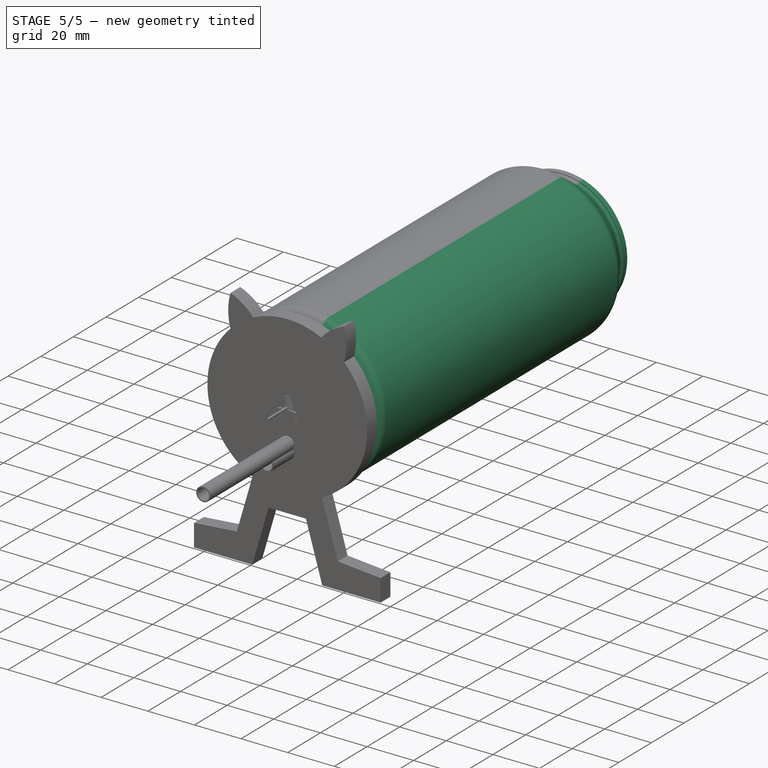
[diagram: stage 5 of 5 — iso view after this stage's code; geometry added in this stage tinted green]
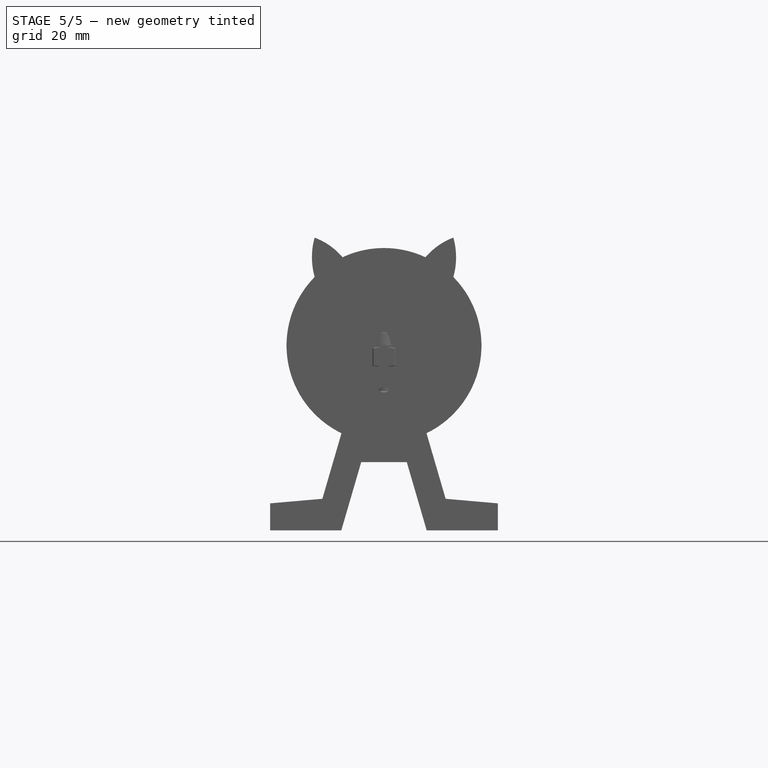
[diagram: stage 5 of 5 — front view after this stage's code; geometry added in this stage tinted green]
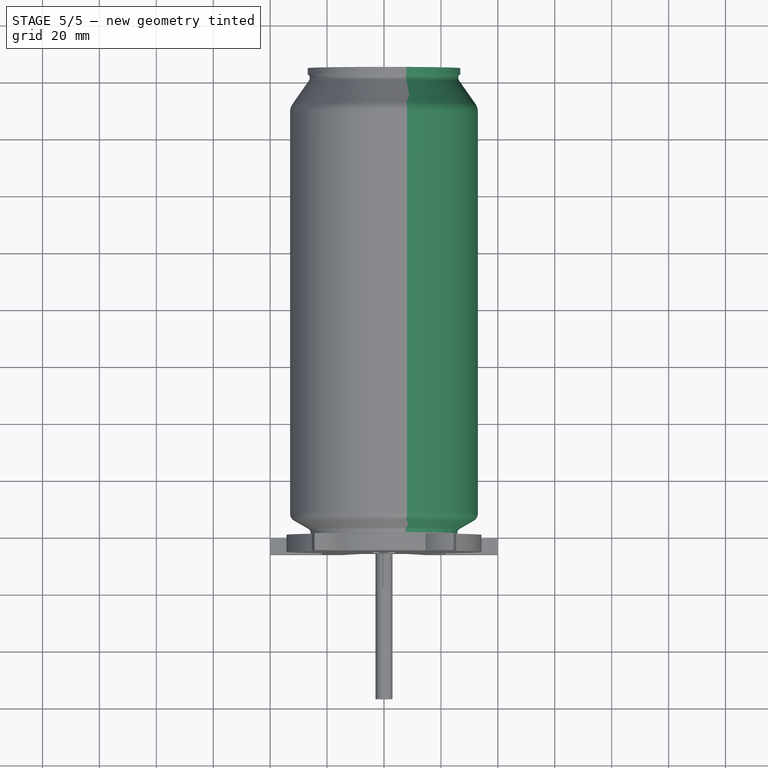
[diagram: stage 5 of 5 — top view after this stage's code; geometry added in this stage tinted green]
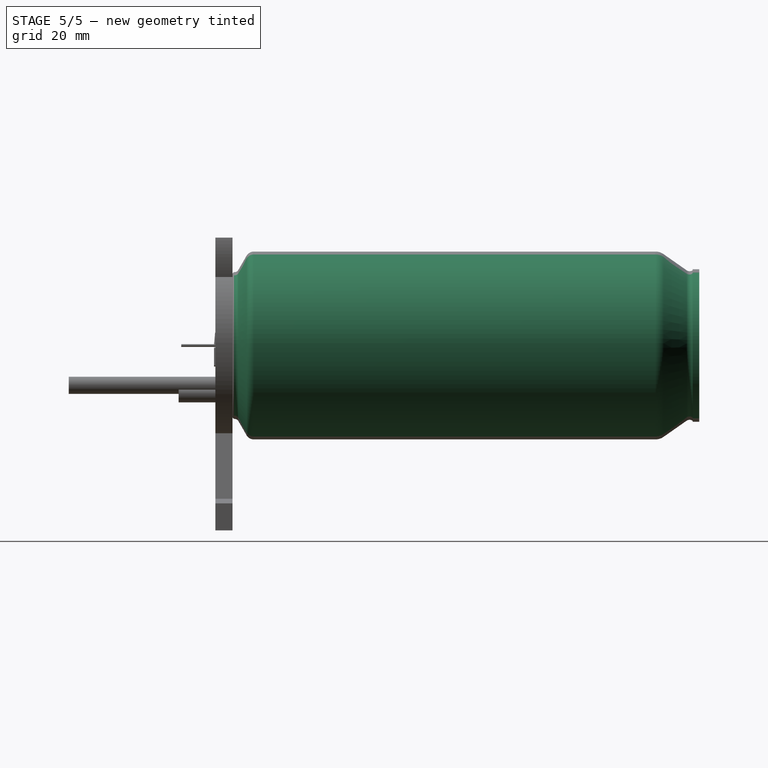
[diagram: stage 5 of 5 — right view after this stage's code; geometry added in this stage tinted green]
FEATURE [Sketcher::SketchObject] Sketch
  ArcFitTolerance = 1e-06
  AttachmentSupport = -> [YZ_Plane001]
  FullyConstrained = false
  MakeInternals = false
  MapMode = 5
  Placement = pos=(0,0,0) rot=(0.57735,0.57735,0.57735;2.0944rad)
  sketch-geometry (26):
    g0: LineSegment StartX=164 StartY=25.22 StartZ=0 EndX=164 EndY=26.78 EndZ=0
    g1: LineSegment StartX=161.7 StartY=26.78 StartZ=0 EndX=161.7 EndY=26.4458 EndZ=0
    g2: LineSegment StartX=159.55 StartY=26.4458 StartZ=0 EndX=151.545 EndY=32.0507 EndZ=0
    g3: LineSegment StartX=148.535 StartY=33 StartZ=0 EndX=7.53452 EndY=33 EndZ=0
    g4: LineSegment StartX=4.93645 StartY=31.5 StartZ=0 EndX=2.07904 EndY=26.5508 EndZ=0
    g5: LineSegment StartX=0 StartY=25.0208 StartZ=0 EndX=0 EndY=24.0208 EndZ=0
    g6: ArcOfCircle CenterX=-23.85 CenterY=0 CenterZ=0 NormalX=0 NormalY=0 NormalZ=1 AngleXU=0 Radius=33.85 StartAngle=0 EndAngle=0.788967
    g7: ArcOfCircle CenterX=7.53452 CenterY=30 CenterZ=0 NormalX=0 NormalY=0 NormalZ=1 AngleXU=0 Radius=3 StartAngle=1.5708 EndAngle=2.61799
    g8: ArcOfCircle CenterX=0.78 CenterY=27.3008 CenterZ=0 NormalX=0 NormalY=0 NormalZ=1 AngleXU=0 Radius=1.5 StartAngle=4.71239 EndAngle=5.75959
    g9: ArcOfCircle CenterX=0.78 CenterY=25.0208 CenterZ=0 NormalX=0 NormalY=0 NormalZ=1 AngleXU=0 Radius=0.78 StartAngle=1.5708 EndAngle=3.14159
    g10: ArcOfCircle CenterX=148.535 CenterY=27.7509 CenterZ=0 NormalX=0 NormalY=0 NormalZ=1 AngleXU=0 Radius=5.24912 StartAngle=0.959931 EndAngle=1.5708
    g11: ArcOfCircle CenterX=160.625 CenterY=27.981 CenterZ=0 NormalX=0 NormalY=0 NormalZ=1 AngleXU=0 Radius=1.87421 StartAngle=4.10152 EndAngle=5.32325
    g12: ArcOfCircle CenterX=160.625 CenterY=27.981 CenterZ=0 NormalX=0 NormalY=0 NormalZ=1 AngleXU=0 Radius=2.65421 StartAngle=4.10152 EndAngle=5.12939
    g13: LineSegment StartX=159.103 StartY=25.8068 StartZ=0 EndX=151.098 EndY=31.4118 EndZ=0
    g14: ArcOfCircle CenterX=148.535 CenterY=27.7509 CenterZ=0 NormalX=0 NormalY=0 NormalZ=1 AngleXU=0 Radius=4.46912 StartAngle=0.959931 EndAngle=1.5708
    g15: LineSegment StartX=148.535 StartY=32.22 StartZ=0 EndX=7.53452 EndY=32.22 EndZ=0
    g16: ArcOfCircle CenterX=7.53452 CenterY=30 CenterZ=0 NormalX=0 NormalY=0 NormalZ=1 AngleXU=0 Radius=2.22 StartAngle=1.5708 EndAngle=2.61799
    g17: LineSegment StartX=5.61195 StartY=31.11 StartZ=0 EndX=2.75454 EndY=26.1608 EndZ=0
    g18: ArcOfCircle CenterX=0.78 CenterY=27.3008 CenterZ=0 NormalX=0 NormalY=0 NormalZ=1 AngleXU=0 Radius=2.28 StartAngle=4.71239 EndAngle=5.75959
    g19: LineSegment StartX=0.78 StartY=25.0208 StartZ=0 EndX=0.78 EndY=23.4385 EndZ=0
    g20: ArcOfCircle CenterX=-23.85 CenterY=0 CenterZ=0 NormalX=0 NormalY=0 NormalZ=1 AngleXU=0 Radius=34 StartAngle=0 EndAngle=0.760616
    g21: LineSegment StartX=10 StartY=0 StartZ=0 EndX=10.15 EndY=0 EndZ=0
    g22: LineSegment StartX=161.7 StartY=25.5542 StartZ=0 EndX=161.7 EndY=25.22 EndZ=0
    g23: LineSegment StartX=164 StartY=25.22 StartZ=0 EndX=161.7 EndY=25.22 EndZ=0
    g24: LineSegment StartX=161.7 StartY=26.78 StartZ=0 EndX=164 EndY=26.78 EndZ=0
    g25: GeomPoint [constr] X=164 Y=26 Z=0
  constraints (70):
    c: Vertical(g0)
    c: PointOnObject(g6,g-1)
    c: Coincident(g6,g5)
    c: PointOnObject(g6,g-1)
    c: DistanceX(g-1,g6) = 10
    c: Tangent(g3,g7) = -1.5708
    c: Tangent(g4,g8) = 1.5708
    c: Tangent(g5,g9) = -1.5708
    c: Tangent(g3,g10) = -1.5708
    c: Coincident(g11,g1)
    c: DistanceY(g5,g5) = 1
    c: Tangent(g12,g13) = 1.5708
    c: Tangent(g13,g14) = -1.5708
    c: Tangent(g14,g15) = -1.5708
    c: Tangent(g15,g16) = -1.5708
    c: Tangent(g16,g17) = -1.5708
    c: Tangent(g17,g18) = 1.5708
    c: Coincident(g18,g19)
    c: Coincident(g19,g20)
    c: Coincident(g12,g11)
    c: Parallel(g13,g2)
    c: Coincident(g14,g10)
    c: Parallel(g15,g3)
    c: Coincident(g16,g7)
    c: Parallel(g17,g4)
    c: Coincident(g18,g8)
    c: Parallel(g19,g5)
    c: Coincident(g20,g6)
    c: Coincident(g21,g6)
    c: Coincident(g21,g20)
    c: Horizontal(g21)
    c: Vertical(g22)
    c: Coincident(g23,g22)
    c: Horizontal(g23)
    c: Distance(g12,g2) = 0.78
    c: Distance(g4,g17) = 0.78
    c: Coincident(g2,g11)
    c: Coincident(g7,g4)
    c: Horizontal(g3)
    c: Diameter(g11) = 3.74841
    c: Diameter(g8) = 3
    c: Diameter(g9) = 1.56
    c: Tangent(g10,g2) = -1.5708
    c: Vertical(g1)
    c: DistanceX(g1,g0) = 2.3
    c: Coincident(g24,g1)
    c: Coincident(g24,g0)
    c: Horizontal(g24)
    c: DistanceX(g2,g1) = 2.15
    c: Vertical(g5)
    c: PointOnObject(g5,g-2)
    c: Coincident(g18,g9)
    c: DistanceY(g20,g3) = 33
    c: Diameter(g20) = 68
    c: DistanceX(g21,g21) = 0.15
    c: Angle(g17,g15) = 2.0944
    c: Tangent(g8,g9) = 1.5708
    c: Vertical(g8,g9)
    c: DistanceX(g3,g3) = 141
    c: Horizontal(g2,g1)
    c: Coincident(g12,g22)
    c: Equal(g22,g1)
    c: Vertical(g12,g1)
    c: Coincident(g0,g23)
    c: DistanceY(g0,g0) = 1.56
    c: Symmetric(g0,g0,g25)
    c: DistanceY(g-1,g25) = 26
    c: DistanceX(g-1,g25) = 164
    c: Diameter(g7) = 6
    c: Angle(g3,g2) = 2.53073
FEATURE [PartDesign::Revolution] Revolution
  Angle = 360
  Angle2 = 60
  Axis = (0,1,0)
  Base = (0,0,0)
  Placement = pos=(0,0,0) rot=(1,1,1;2.0944rad)
  Profile = -> Sketch
  ReferenceAxis = -> Sketch [H_Axis]
  Refine = true
  Suppressed = false
  Type = 0
FEATURE [Sketcher::SketchObject] Sketch001
  ArcFitTolerance = 1e-06
  AttachmentSupport = -> [Revolution]
  FullyConstrained = true
  MakeInternals = false
  MapMode = 5
  Placement = pos=(0,-5.6e-15,0) rot=(0.57735,0.57735,-0.57735;2.0944rad)
  sketch-geometry (2):
    g0: Circle CenterX=0 CenterY=0 CenterZ=0 NormalX=0 NormalY=0 NormalZ=1 AngleXU=0 Radius=4
    g1: Circle CenterX=14 CenterY=0 CenterZ=0 NormalX=0 NormalY=0 NormalZ=1 AngleXU=0 Radius=1
  constraints (5):
    c: Diameter(g0) = 8
    c: Coincident(g0,g-1)
    c: Diameter(g1) = 2
    c: PointOnObject(g1,g-1)
    c: DistanceX(g0,g1) = 14
FEATURE [PartDesign::Pocket] Pocket
  BaseFeature = -> Revolution
  Direction = (0,1,0)
  Length = 11
  Length2 = 5
  Placement = pos=(0,0,0) rot=(1,1,1;2.0944rad)
  Profile = -> Sketch001
  ReferenceAxis = -> Sketch001 [N_Axis]
  Refine = true
  Suppressed = false
  Type = 0
FEATURE [PartDesign::FeatureBase] BaseFeature
  BaseFeature = -> Screw
  Suppressed = false
FEATURE [Sketcher::SketchObject] Sketch002
  ArcFitTolerance = 1e-06
  AttachmentSupport = -> [BaseFeature]
  FullyConstrained = true
  MakeInternals = false
  MapMode = 5
  Placement = pos=(0,0,-16) rot=(1,0,0;3.14159rad)
  sketch-geometry (1):
    g0: Circle CenterX=0 CenterY=0 CenterZ=0 NormalX=0 NormalY=0 NormalZ=1 AngleXU=0 Radius=0.5
  constraints (2):
    c: Diameter(g0) = 1
    c: Coincident(g0,g-1)
FEATURE [PartDesign::Pocket] Pocket001
  BaseFeature = -> BaseFeature
  Direction = (0,0,1)
  Length = 5
  Length2 = 5
  Profile = -> Sketch002
  ReferenceAxis = -> Sketch002 [N_Axis]
  Refine = true
  Suppressed = false
  Type = 1
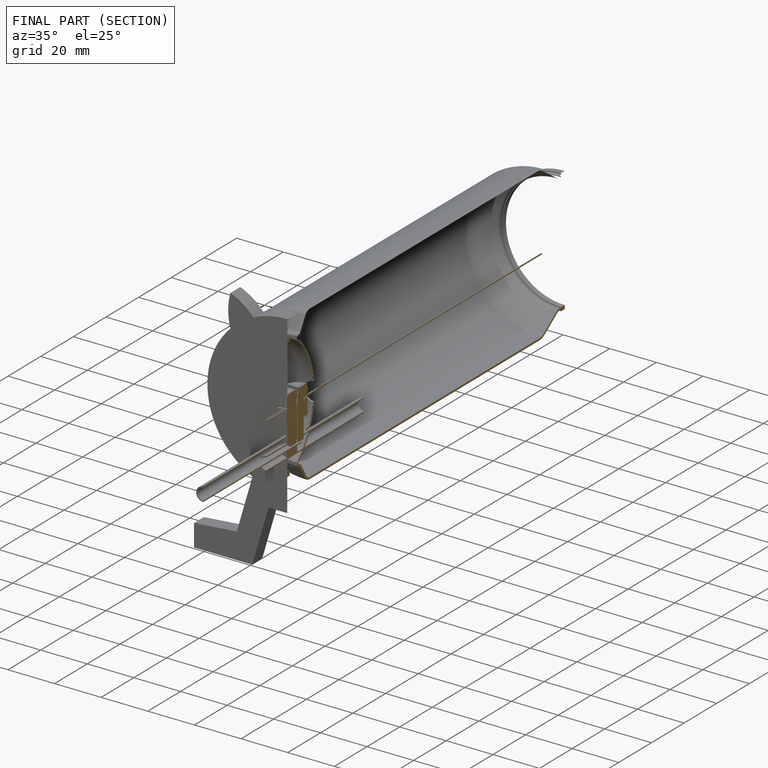
[diagram: finished part — half-section view (interior)]
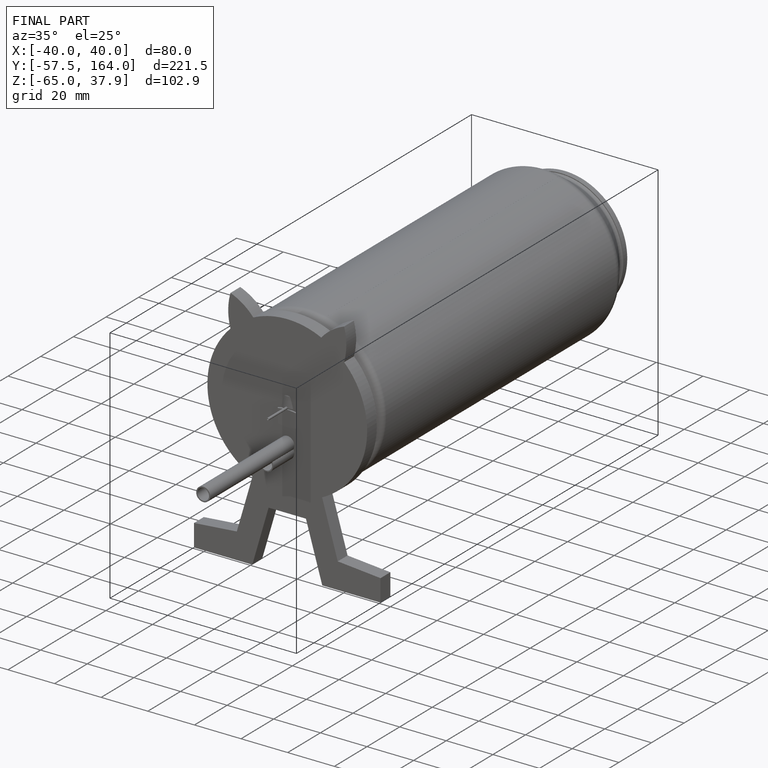
[diagram: finished part — iso view with bounding-box wireframe]
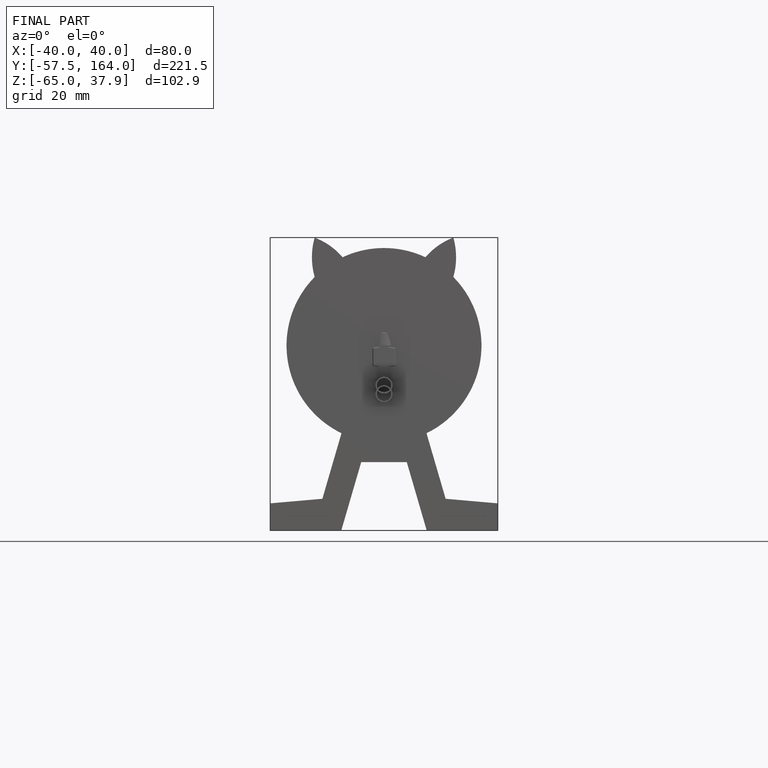
[diagram: finished part — front view with bounding-box wireframe]
